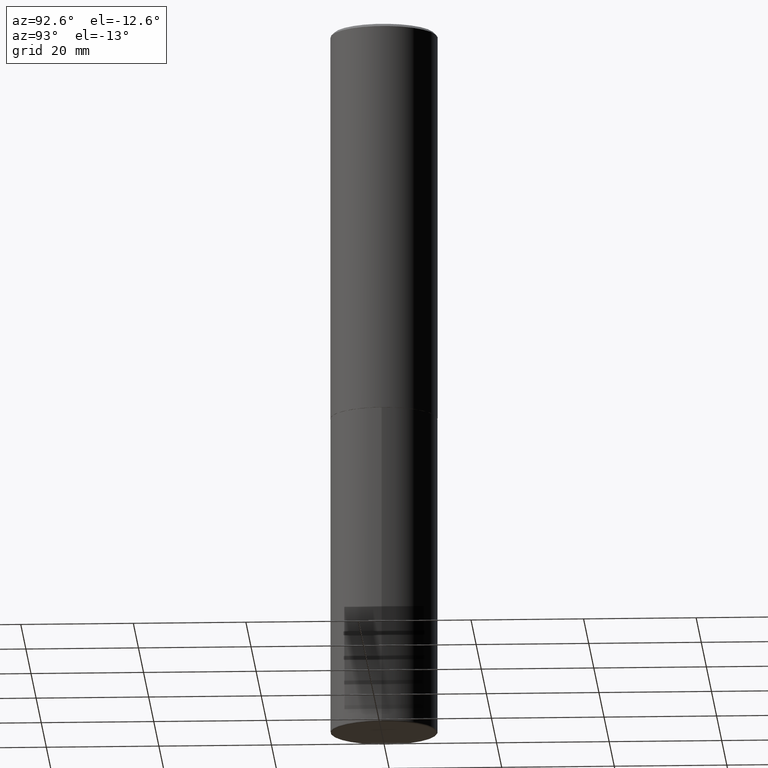
[diagram: clean part render]
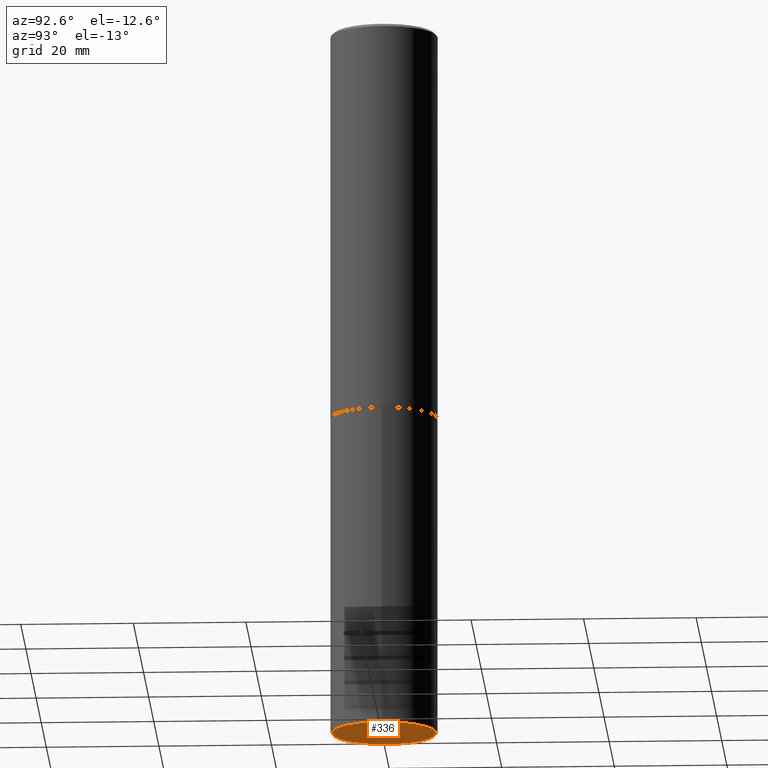
[diagram: same view with one face highlighted and labeled with its STEP entity id]
A machine part, auxiliary view. The second image highlights one B-rep face of the part: STEP entity #336.
In plain terms, the highlighted planar face has unit normal (0, -0, -1).
Its self-contained STEP definition (entity closure, byte-faithful):
#6 = AXIS2_PLACEMENT_3D ( 'NONE', #58, #65, #409 ) ;
#18 = CARTESIAN_POINT ( 'NONE',  ( 0.3650000000000000466, -2.000618807157122291E-14, -5.000000000000000888 ) ) ;
#39 = AXIS2_PLACEMENT_3D ( 'NONE', #214, #130, #301 ) ;
#44 = CARTESIAN_POINT ( 'NONE',  ( -0.3650000000000000466, -1.481094116520914498E-14, -5.000000000000000888 ) ) ;
#58 = CARTESIAN_POINT ( 'NONE',  ( 1.222734403092568523E-28, -1.745740669421573304E-14, -5.000000000000000888 ) ) ;
#65 = DIRECTION ( 'NONE',  ( -2.445468806185136597E-29, 3.491481338843145583E-15, 1.000000000000000000 ) ) ;
#74 = EDGE_CURVE ( 'NONE', #400, #394, #315, .T. ) ;
#130 = DIRECTION ( 'NONE',  ( 2.438088387897960049E-29, -3.491481338843145188E-15, -1.000000000000000000 ) ) ;
#180 = EDGE_LOOP ( 'NONE', ( #181, #248 ) ) ;
#181 = ORIENTED_EDGE ( 'NONE', *, *, #305, .F. ) ;
#187 = FACE_OUTER_BOUND ( 'NONE', #180, .T. ) ;
#198 = DIRECTION ( 'NONE',  ( -2.445468806185136597E-29, 3.491481338843145583E-15, 1.000000000000000000 ) ) ;
#214 = CARTESIAN_POINT ( 'NONE',  ( 1.774526178394363037E-29, -3.242643679648566706E-14, -5.000000000000000000 ) ) ;
#233 = CARTESIAN_POINT ( 'NONE',  ( 1.222734403092568523E-28, -1.745740669421573304E-14, -5.000000000000000888 ) ) ;
#248 = ORIENTED_EDGE ( 'NONE', *, *, #74, .F. ) ;
#267 = DIRECTION ( 'NONE',  ( 1.000000000000000000, -6.982962677686270655E-15, 0.000000000000000000 ) ) ;
#269 = CIRCLE ( 'NONE', #6, 0.3650000000000000466 ) ;
#301 = DIRECTION ( 'NONE',  ( -1.000000000000000000, 6.982962677686265922E-15, -4.876176775795935793E-29 ) ) ;
#305 = EDGE_CURVE ( 'NONE', #394, #400, #269, .T. ) ;
#306 = PLANE ( 'NONE',  #39 ) ;
#315 = CIRCLE ( 'NONE', #391, 0.3650000000000000466 ) ;
#336 = ADVANCED_FACE ( 'NONE', ( #187 ), #306, .T. ) ;
#391 = AXIS2_PLACEMENT_3D ( 'NONE', #233, #198, #267 ) ;
#394 = VERTEX_POINT ( 'NONE', #18 ) ;
#400 = VERTEX_POINT ( 'NONE', #44 ) ;
#409 = DIRECTION ( 'NONE',  ( 1.000000000000000000, -6.982962677686270655E-15, 0.000000000000000000 ) ) ;